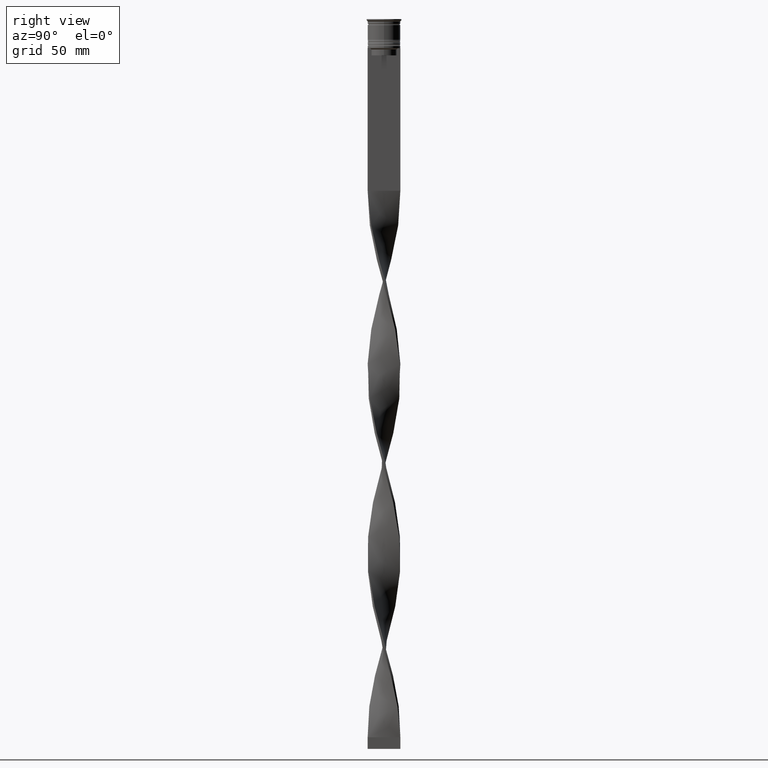
[diagram: clean part render]
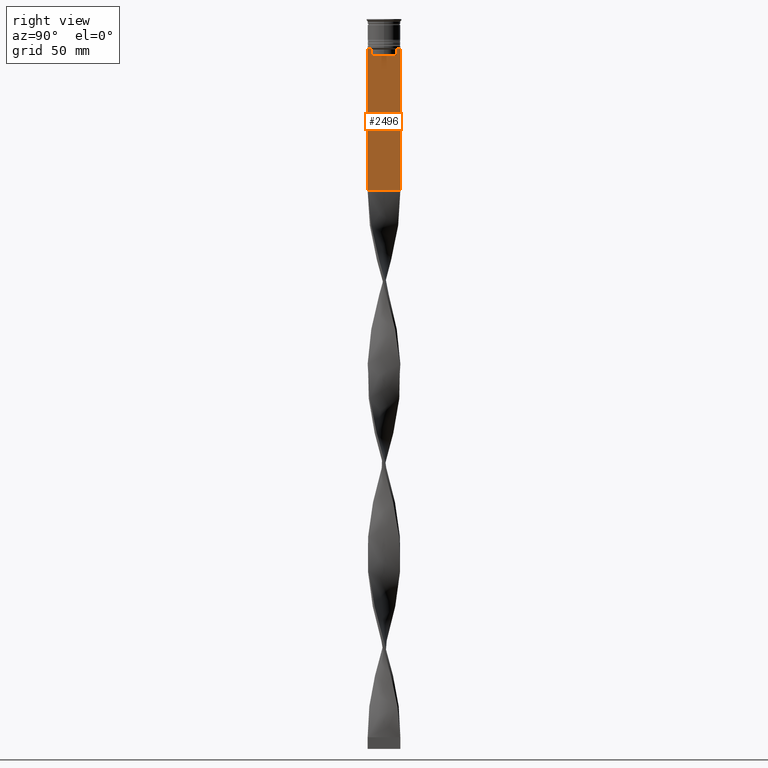
[diagram: same view with one face highlighted and labeled with its STEP entity id]
A machine part, right view. The second image highlights one B-rep face of the part: STEP entity #2496.
In plain terms, the highlighted planar face has unit normal (-1, 0, 0).
Its self-contained STEP definition (entity closure, byte-faithful):
#29 = CARTESIAN_POINT ( 'NONE',  ( 0.5000000000000000000, -6.999999999999997335, -73.50000000000001421 ) ) ;
#110 = VERTEX_POINT ( 'NONE', #2934 ) ;
#149 = CARTESIAN_POINT ( 'NONE',  ( 0.5000000000000000000, -5.878775382679629402, -12.50000000000000000 ) ) ;
#190 = VECTOR ( 'NONE', #1154, 1000.000000000000000 ) ;
#256 = VERTEX_POINT ( 'NONE', #3137 ) ;
#313 = DIRECTION ( 'NONE',  ( 0.000000000000000000, -1.000000000000000000, 0.000000000000000000 ) ) ;
#366 = LINE ( 'NONE', #1080, #2263 ) ;
#376 = DIRECTION ( 'NONE',  ( 0.000000000000000000, 1.000000000000000000, 0.000000000000000000 ) ) ;
#461 = CARTESIAN_POINT ( 'NONE',  ( 0.5000000000000000000, -5.544156999454441959, -12.83336396790503642 ) ) ;
#497 = EDGE_CURVE ( 'NONE', #256, #3071, #2701, .T. ) ;
#516 = VECTOR ( 'NONE', #673, 1000.000000000000000 ) ;
#565 = VERTEX_POINT ( 'NONE', #2071 ) ;
#582 = EDGE_CURVE ( 'NONE', #2680, #1304, #3441, .T. ) ;
#595 = DIRECTION ( 'NONE',  ( 0.000000000000000000, 0.000000000000000000, -1.000000000000000000 ) ) ;
#648 = CARTESIAN_POINT ( 'NONE',  ( 0.5000000000000000000, -6.999999999999997335, -12.50000000000000000 ) ) ;
#655 = VECTOR ( 'NONE', #2412, 1000.000000000000000 ) ;
#673 = DIRECTION ( 'NONE',  ( 0.000000000000000000, -1.000000000000000000, 0.000000000000000000 ) ) ;
#683 = VECTOR ( 'NONE', #3873, 1000.000000000000000 ) ;
#709 = CARTESIAN_POINT ( 'NONE',  ( 0.5000000000000000000, -6.999999999999997335, -73.50000000000001421 ) ) ;
#1015 = EDGE_CURVE ( 'NONE', #110, #3053, #1101, .T. ) ;
#1067 = VECTOR ( 'NONE', #4092, 1000.000000000000000 ) ;
#1075 = EDGE_CURVE ( 'NONE', #2912, #256, #1980, .T. ) ;
#1080 = CARTESIAN_POINT ( 'NONE',  ( 0.5000000000000000000, 5.376802023508029826, 0.000000000000000000 ) ) ;
#1090 = ORIENTED_EDGE ( 'NONE', *, *, #582, .T. ) ;
#1101 = LINE ( 'NONE', #1761, #655 ) ;
#1125 = VECTOR ( 'NONE', #595, 1000.000000000000000 ) ;
#1154 = DIRECTION ( 'NONE',  ( 0.000000000000000000, -1.000000000000000000, 0.000000000000000000 ) ) ;
#1187 = VECTOR ( 'NONE', #313, 1000.000000000000000 ) ;
#1223 = DIRECTION ( 'NONE',  ( 0.000000000000000000, 0.000000000000000000, 1.000000000000000000 ) ) ;
#1276 = LINE ( 'NONE', #3825, #1067 ) ;
#1304 = VERTEX_POINT ( 'NONE', #1630 ) ;
#1305 = PLANE ( 'NONE',  #1388 ) ;
#1313 = EDGE_CURVE ( 'NONE', #3529, #3053, #3856, .T. ) ;
#1320 = CARTESIAN_POINT ( 'NONE',  ( 0.5000000000000000000, -6.999999999999997335, -12.50000000000000000 ) ) ;
#1367 = EDGE_CURVE ( 'NONE', #2957, #3769, #3876, .T. ) ;
#1377 = CARTESIAN_POINT ( 'NONE',  ( 0.5000000000000000000, 5.376802023508029826, -13.00000000000000178 ) ) ;
#1388 = AXIS2_PLACEMENT_3D ( 'NONE', #2509, #2827, #1223 ) ;
#1400 = CARTESIAN_POINT ( 'NONE',  ( 0.5000000000000000000, 5.878775382679629402, -12.50000000000000000 ) ) ;
#1466 = CARTESIAN_POINT ( 'NONE',  ( 0.5000000000000000000, -6.999999999999997335, -12.50000000000000000 ) ) ;
#1486 = LINE ( 'NONE', #1466, #190 ) ;
#1546 = CARTESIAN_POINT ( 'NONE',  ( 0.5000000000000000000, -5.376802023508029826, -13.00000000000000178 ) ) ;
#1581 = LINE ( 'NONE', #2299, #683 ) ;
#1591 = ORIENTED_EDGE ( 'NONE', *, *, #1313, .T. ) ;
#1630 = CARTESIAN_POINT ( 'NONE',  ( 0.5000000000000000000, -5.878775382679629402, -12.50000000000000000 ) ) ;
#1711 = CARTESIAN_POINT ( 'NONE',  ( 0.5000000000000000000, 5.544156989057553275, -12.83336397825725861 ) ) ;
#1761 = CARTESIAN_POINT ( 'NONE',  ( 0.5000000000000000000, 7.000000000000002665, 1.535668847618198329 ) ) ;
#1779 = ORIENTED_EDGE ( 'NONE', *, *, #2005, .T. ) ;
#1788 = CARTESIAN_POINT ( 'NONE',  ( 0.5000000000000000000, 6.881860213634102053, -12.50000000000000000 ) ) ;
#1820 = ORIENTED_EDGE ( 'NONE', *, *, #2342, .T. ) ;
#1894 = ORIENTED_EDGE ( 'NONE', *, *, #2995, .T. ) ;
#1900 = CARTESIAN_POINT ( 'NONE',  ( 0.5000000000000000000, -6.999999999999997335, -12.50000000000000000 ) ) ;
#1980 = LINE ( 'NONE', #1900, #516 ) ;
#2005 = EDGE_CURVE ( 'NONE', #3071, #565, #366, .T. ) ;
#2045 = CARTESIAN_POINT ( 'NONE',  ( 0.5000000000000000000, -5.376802023508029826, -13.00000000000000178 ) ) ;
#2063 = VECTOR ( 'NONE', #2280, 1000.000000000000000 ) ;
#2071 = CARTESIAN_POINT ( 'NONE',  ( 0.5000000000000000000, 5.376802023508029826, -15.50000000000000000 ) ) ;
#2204 = LINE ( 'NONE', #3462, #1125 ) ;
#2213 = LINE ( 'NONE', #648, #2063 ) ;
#2232 = CARTESIAN_POINT ( 'NONE',  ( 0.5000000000000000000, 5.376802023508029826, -13.00000000000000178 ) ) ;
#2263 = VECTOR ( 'NONE', #3295, 1000.000000000000000 ) ;
#2280 = DIRECTION ( 'NONE',  ( 0.000000000000000000, -1.000000000000000000, 0.000000000000000000 ) ) ;
#2299 = CARTESIAN_POINT ( 'NONE',  ( 0.5000000000000000000, -5.376802023508029826, 0.000000000000000000 ) ) ;
#2342 = EDGE_CURVE ( 'NONE', #1304, #2957, #1486, .T. ) ;
#2347 = VERTEX_POINT ( 'NONE', #2429 ) ;
#2371 = ORIENTED_EDGE ( 'NONE', *, *, #1075, .T. ) ;
#2412 = DIRECTION ( 'NONE',  ( 0.000000000000000000, 0.000000000000000000, -1.000000000000000000 ) ) ;
#2429 = CARTESIAN_POINT ( 'NONE',  ( 0.5000000000000000000, -5.376802023508029826, -15.50000000000000000 ) ) ;
#2496 = ADVANCED_FACE ( 'NONE', ( #2572 ), #1305, .F. ) ;
#2509 = CARTESIAN_POINT ( 'NONE',  ( 0.5000000000000000000, -6.999999999999997335, 1.535668847618198329 ) ) ;
#2530 = EDGE_CURVE ( 'NONE', #3769, #3529, #2204, .T. ) ;
#2572 = FACE_OUTER_BOUND ( 'NONE', #3751, .T. ) ;
#2582 = CARTESIAN_POINT ( 'NONE',  ( 0.5000000000000000000, -6.999999999999997335, -12.50000000000000000 ) ) ;
#2670 = CARTESIAN_POINT ( 'NONE',  ( 0.5000000000000000000, 5.711478846560141598, -12.66669470477064685 ) ) ;
#2680 = VERTEX_POINT ( 'NONE', #1546 ) ;
#2701 = B_SPLINE_CURVE_WITH_KNOTS ( 'NONE', 3,
 ( #1400, #2670, #1711, #1377 ),
 .UNSPECIFIED., .F., .F.,
 ( 4, 4 ),
 ( 0.01003009312103698807, 0.01073859663834952557 ),
 .UNSPECIFIED. ) ;
#2827 = DIRECTION ( 'NONE',  ( -1.000000000000000000, 0.000000000000000000, 0.000000000000000000 ) ) ;
#2858 = VECTOR ( 'NONE', #376, 1000.000000000000000 ) ;
#2873 = ORIENTED_EDGE ( 'NONE', *, *, #497, .T. ) ;
#2912 = VERTEX_POINT ( 'NONE', #1788 ) ;
#2923 = CARTESIAN_POINT ( 'NONE',  ( 0.5000000000000000000, 7.000000000000002665, -73.50000000000001421 ) ) ;
#2934 = CARTESIAN_POINT ( 'NONE',  ( 0.5000000000000000000, 7.000000000000002665, -12.50000000000000000 ) ) ;
#2957 = VERTEX_POINT ( 'NONE', #3450 ) ;
#2983 = EDGE_CURVE ( 'NONE', #110, #2912, #2213, .T. ) ;
#2995 = EDGE_CURVE ( 'NONE', #565, #2347, #1276, .T. ) ;
#3009 = CARTESIAN_POINT ( 'NONE',  ( 0.5000000000000000000, -5.711478856069293286, -12.66669469529570335 ) ) ;
#3053 = VERTEX_POINT ( 'NONE', #2923 ) ;
#3071 = VERTEX_POINT ( 'NONE', #2232 ) ;
#3137 = CARTESIAN_POINT ( 'NONE',  ( 0.5000000000000000000, 5.878775382679629402, -12.50000000000000000 ) ) ;
#3158 = ORIENTED_EDGE ( 'NONE', *, *, #2983, .T. ) ;
#3295 = DIRECTION ( 'NONE',  ( 0.000000000000000000, 0.000000000000000000, -1.000000000000000000 ) ) ;
#3343 = ORIENTED_EDGE ( 'NONE', *, *, #1015, .F. ) ;
#3441 = B_SPLINE_CURVE_WITH_KNOTS ( 'NONE', 3,
 ( #2045, #461, #3009, #149 ),
 .UNSPECIFIED., .F., .F.,
 ( 4, 4 ),
 ( 0.02539176325380714666, 0.02610162431828674801 ),
 .UNSPECIFIED. ) ;
#3450 = CARTESIAN_POINT ( 'NONE',  ( 0.5000000000000000000, -6.881860213634102053, -12.50000000000000000 ) ) ;
#3462 = CARTESIAN_POINT ( 'NONE',  ( 0.5000000000000000000, -6.999999999999997335, 1.535668847618198329 ) ) ;
#3529 = VERTEX_POINT ( 'NONE', #709 ) ;
#3732 = EDGE_CURVE ( 'NONE', #2347, #2680, #1581, .T. ) ;
#3733 = ORIENTED_EDGE ( 'NONE', *, *, #3732, .T. ) ;
#3751 = EDGE_LOOP ( 'NONE', ( #2371, #2873, #1779, #1894, #3733, #1090, #1820, #3978, #3974, #1591, #3343, #3158 ) ) ;
#3769 = VERTEX_POINT ( 'NONE', #2582 ) ;
#3825 = CARTESIAN_POINT ( 'NONE',  ( 0.5000000000000000000, 5.400000000000003908, -15.50000000000000000 ) ) ;
#3856 = LINE ( 'NONE', #29, #2858 ) ;
#3873 = DIRECTION ( 'NONE',  ( -0.000000000000000000, -0.000000000000000000, 1.000000000000000000 ) ) ;
#3876 = LINE ( 'NONE', #1320, #1187 ) ;
#3974 = ORIENTED_EDGE ( 'NONE', *, *, #2530, .T. ) ;
#3978 = ORIENTED_EDGE ( 'NONE', *, *, #1367, .T. ) ;
#4092 = DIRECTION ( 'NONE',  ( 0.000000000000000000, -1.000000000000000000, 0.000000000000000000 ) ) ;